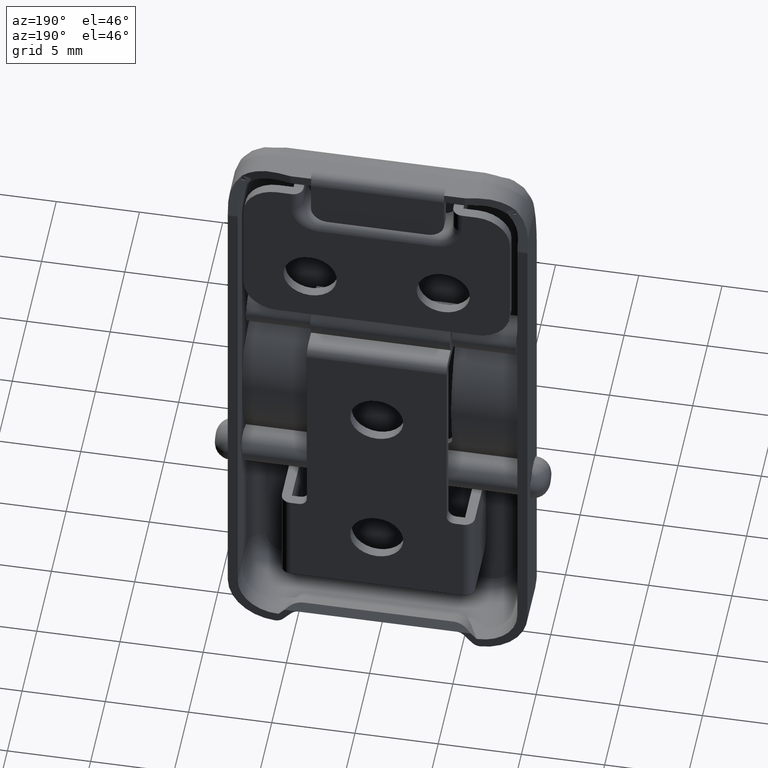
[diagram: clean part render]
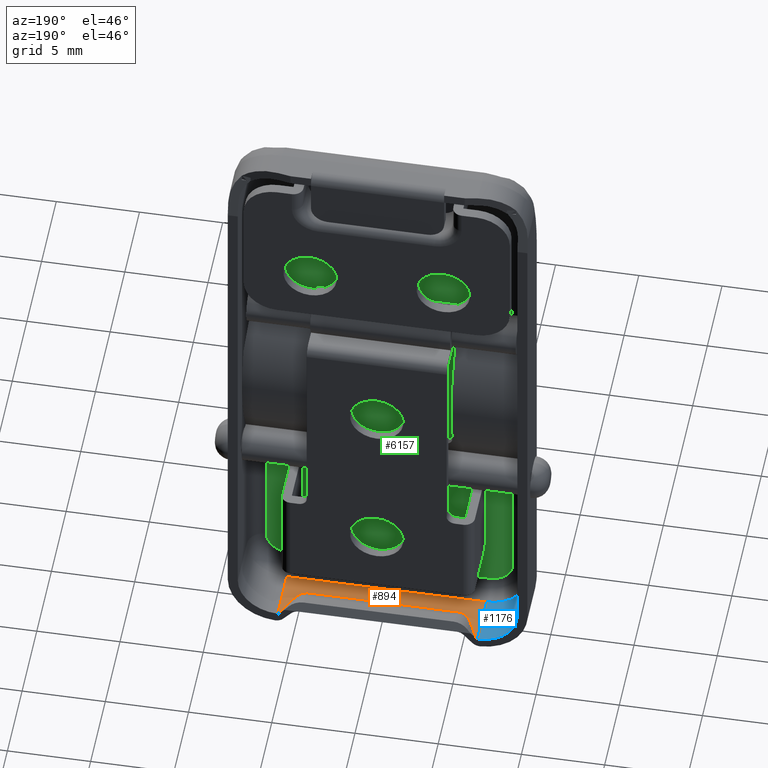
[diagram: same view with three faces highlighted in distinct colors, each labeled with its STEP entity id]
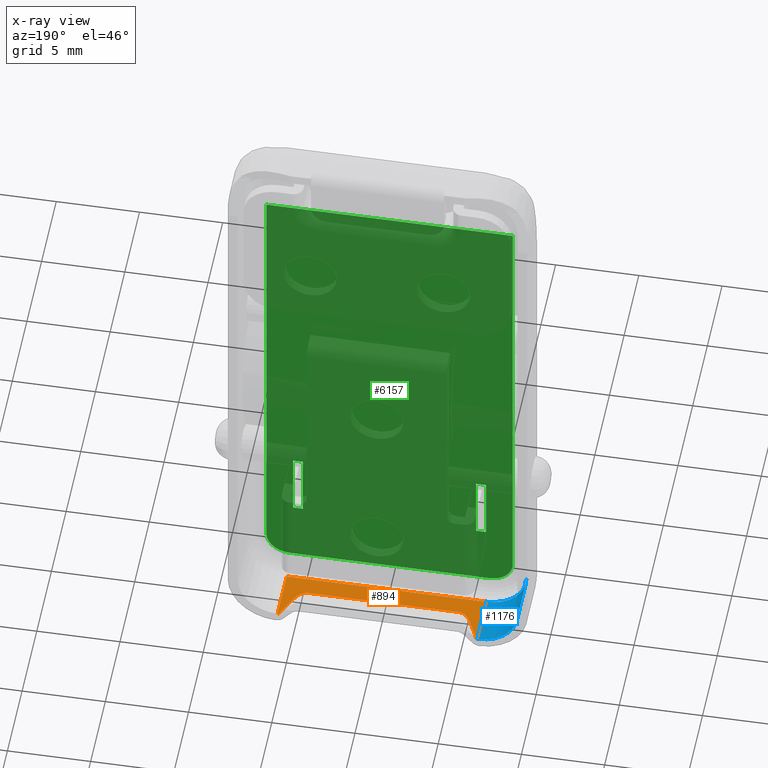
[diagram: x-ray of the same camera — body ghosted, the three highlighted faces saturated]
A machine part, auxiliary view with three faces highlighted in distinct colors.
The next image is the same camera in x-ray (body ghosted, the three faces saturated) — at least one of them is partly hidden behind the body in this view.
Their STEP definitions:

[orange] entity #894 — the highlighted planar face has unit normal (0, 0, -1).
#42 = CARTESIAN_POINT ( 'NONE',  ( 5.951801146340889300, 2.300006252357360100, -23.89304136415245200 ) ) ;
#137 = ORIENTED_EDGE ( 'NONE', *, *, #3280, .F. ) ;
#142 = DIRECTION ( 'NONE',  ( -0.4297196814839521200, -0.9029623443673222600, -0.0000000000000000000 ) ) ;
#348 = EDGE_CURVE ( 'NONE', #4012, #5496, #2233, .T. ) ;
#431 = EDGE_CURVE ( 'NONE', #918, #1762, #3290, .T. ) ;
#587 = VERTEX_POINT ( 'NONE', #3178 ) ;
#772 = DIRECTION ( 'NONE',  ( 0.0000000000000000000, 1.000000000000000000, 0.0000000000000000000 ) ) ;
#809 = VECTOR ( 'NONE', #4792, 1000.000000000000000 ) ;
#827 = CARTESIAN_POINT ( 'NONE',  ( 5.351473226424399600, 1.038547842807658000, -23.89304136415245200 ) ) ;
#852 = CARTESIAN_POINT ( 'NONE',  ( -5.665243343082629200, 1.697875828439879800, -23.89304136415245200 ) ) ;
#894 = ADVANCED_FACE ( 'NONE', ( #2236 ), #5094, .F. ) ;
#918 = VERTEX_POINT ( 'NONE', #1664 ) ;
#1089 = AXIS2_PLACEMENT_3D ( 'NONE', #5581, #6090, #3116 ) ;
#1098 = VERTEX_POINT ( 'NONE', #3125 ) ;
#1100 = DIRECTION ( 'NONE',  ( 1.000000000000000000, -0.0000000000000000000, -0.0000000000000000000 ) ) ;
#1256 = CARTESIAN_POINT ( 'NONE',  ( -6.000001000000089800, 9.252350464339370100E-006, -23.89304136415245200 ) ) ;
#1280 =( BOUNDED_CURVE ( )  B_SPLINE_CURVE ( 3, ( #5215, #4248, #1791, #5732 ),
 .UNSPECIFIED., .F., .F. ) 
 B_SPLINE_CURVE_WITH_KNOTS ( ( 4, 4 ),
 ( 5.497787143782145100, 6.283185307179586200 ),
 .UNSPECIFIED. ) 
 CURVE ( )  GEOMETRIC_REPRESENTATION_ITEM ( )  RATIONAL_B_SPLINE_CURVE ( ( 1.000000000000000000, 0.9492530216741921200, 0.9492530216741921200, 1.000000000000000000 ) ) 
 REPRESENTATION_ITEM ( '' )  );
#1424 = VECTOR ( 'NONE', #772, 1000.000000000000000 ) ;
#1586 = CARTESIAN_POINT ( 'NONE',  ( 990.9999990000000000, 2.300006252357360100, -23.89304136415245200 ) ) ;
#1592 = EDGE_LOOP ( 'NONE', ( #2721, #2456, #3804, #137, #1938, #5037, #2916, #6332, #4716, #5755 ) ) ;
#1647 = VERTEX_POINT ( 'NONE', #42 ) ;
#1664 = CARTESIAN_POINT ( 'NONE',  ( 6.000000999999909500, 2.300006252357360100, -23.89304136415245200 ) ) ;
#1680 = VECTOR ( 'NONE', #2274, 1000.000000000000000 ) ;
#1744 = LINE ( 'NONE', #1586, #5198 ) ;
#1762 = VERTEX_POINT ( 'NONE', #6352 ) ;
#1791 = CARTESIAN_POINT ( 'NONE',  ( 4.825458411478205500, 0.3000062523574099100, -23.89304136415245600 ) ) ;
#1910 = VERTEX_POINT ( 'NONE', #4603 ) ;
#1937 = CARTESIAN_POINT ( 'NONE',  ( 1.999999906840410200E-006, 0.3000062523573610000, -23.89304136415245200 ) ) ;
#1938 = ORIENTED_EDGE ( 'NONE', *, *, #6288, .F. ) ;
#2081 = DIRECTION ( 'NONE',  ( 1.000000000000000000, -0.0000000000000000000, -0.0000000000000000000 ) ) ;
#2086 = CARTESIAN_POINT ( 'NONE',  ( -4.825454411478283100, 0.3000062523574150200, -23.89304136415245200 ) ) ;
#2233 =( BOUNDED_CURVE ( )  B_SPLINE_CURVE ( 3, ( #2572, #2086, #6034, #3078 ),
 .UNSPECIFIED., .F., .F. ) 
 B_SPLINE_CURVE_WITH_KNOTS ( ( 4, 4 ),
 ( 3.141592653589793100, 3.926990816987230300 ),
 .UNSPECIFIED. ) 
 CURVE ( )  GEOMETRIC_REPRESENTATION_ITEM ( )  RATIONAL_B_SPLINE_CURVE ( ( 1.000000000000000000, 0.9492530216741924500, 0.9492530216741924500, 1.000000000000000000 ) ) 
 REPRESENTATION_ITEM ( '' )  );
#2236 = FACE_OUTER_BOUND ( 'NONE', #1592, .T. ) ;
#2269 = LINE ( 'NONE', #852, #809 ) ;
#2274 = DIRECTION ( 'NONE',  ( -1.000000000000000000, 0.0000000000000000000, 0.0000000000000000000 ) ) ;
#2449 = VECTOR ( 'NONE', #2549, 1000.000000000000000 ) ;
#2456 = ORIENTED_EDGE ( 'NONE', *, *, #348, .T. ) ;
#2547 = EDGE_CURVE ( 'NONE', #2604, #5019, #1280, .T. ) ;
#2549 = DIRECTION ( 'NONE',  ( -0.0000000000000000000, -1.000000000000000000, -0.0000000000000000000 ) ) ;
#2572 = CARTESIAN_POINT ( 'NONE',  ( -4.502941089000659100, 0.3000062523573610000, -23.89304136415245200 ) ) ;
#2578 = CARTESIAN_POINT ( 'NONE',  ( 9.463611489973390100, 9.679311035208559800, -23.89304136415245200 ) ) ;
#2604 = VERTEX_POINT ( 'NONE', #827 ) ;
#2721 = ORIENTED_EDGE ( 'NONE', *, *, #3885, .F. ) ;
#2731 = LINE ( 'NONE', #1256, #1424 ) ;
#2755 = LINE ( 'NONE', #3563, #3907 ) ;
#2782 = CARTESIAN_POINT ( 'NONE',  ( -5.351469226424530500, 1.038547842807543900, -23.89304136415245200 ) ) ;
#2916 = ORIENTED_EDGE ( 'NONE', *, *, #431, .F. ) ;
#3078 = CARTESIAN_POINT ( 'NONE',  ( -5.351469226424530500, 1.038547842807543900, -23.89304136415245200 ) ) ;
#3116 = DIRECTION ( 'NONE',  ( -1.000000000000000000, 0.0000000000000000000, 0.0000000000000000000 ) ) ;
#3125 = CARTESIAN_POINT ( 'NONE',  ( -6.000001000000089800, -0.7999907476493990400, -23.89304136415245200 ) ) ;
#3178 = CARTESIAN_POINT ( 'NONE',  ( -6.000001000000089800, 2.300006252357360100, -23.89304136415245200 ) ) ;
#3280 = EDGE_CURVE ( 'NONE', #587, #1910, #2755, .T. ) ;
#3290 = LINE ( 'NONE', #3536, #2449 ) ;
#3487 = EDGE_CURVE ( 'NONE', #1762, #1098, #4306, .T. ) ;
#3528 = CARTESIAN_POINT ( 'NONE',  ( 4.502945089000579800, 0.3000062523573610000, -23.89304136415245200 ) ) ;
#3536 = CARTESIAN_POINT ( 'NONE',  ( 6.000000999999909500, 9.252350464339370100E-006, -23.89304136415245200 ) ) ;
#3563 = CARTESIAN_POINT ( 'NONE',  ( 990.9999990000000000, 2.300006252357360100, -23.89304136415245200 ) ) ;
#3804 = ORIENTED_EDGE ( 'NONE', *, *, #6382, .T. ) ;
#3885 = EDGE_CURVE ( 'NONE', #4012, #5019, #4772, .T. ) ;
#3907 = VECTOR ( 'NONE', #1100, 1000.000000000000000 ) ;
#4012 = VERTEX_POINT ( 'NONE', #5661 ) ;
#4248 = CARTESIAN_POINT ( 'NONE',  ( 5.123421869077496600, 0.5593475707720461100, -23.89304136415245600 ) ) ;
#4306 = LINE ( 'NONE', #5739, #1680 ) ;
#4429 = DIRECTION ( 'NONE',  ( 1.000000000000000000, -0.0000000000000000000, -0.0000000000000000000 ) ) ;
#4466 = VECTOR ( 'NONE', #4429, 1000.000000000000000 ) ;
#4603 = CARTESIAN_POINT ( 'NONE',  ( -5.951797146341069900, 2.300006252357360100, -23.89304136415245200 ) ) ;
#4716 = ORIENTED_EDGE ( 'NONE', *, *, #6113, .T. ) ;
#4772 = LINE ( 'NONE', #1937, #4466 ) ;
#4792 = DIRECTION ( 'NONE',  ( -0.4297196814839514000, 0.9029623443673227000, -0.0000000000000000000 ) ) ;
#4965 = LINE ( 'NONE', #2578, #6134 ) ;
#5019 = VERTEX_POINT ( 'NONE', #3528 ) ;
#5037 = ORIENTED_EDGE ( 'NONE', *, *, #3487, .F. ) ;
#5094 = PLANE ( 'NONE',  #1089 ) ;
#5198 = VECTOR ( 'NONE', #2081, 1000.000000000000000 ) ;
#5215 = CARTESIAN_POINT ( 'NONE',  ( 5.351473226424399600, 1.038547842807658000, -23.89304136415245200 ) ) ;
#5496 = VERTEX_POINT ( 'NONE', #2782 ) ;
#5581 = CARTESIAN_POINT ( 'NONE',  ( 1.999999906840410200E-006, 9.252350464339370100E-006, -23.89304136415245200 ) ) ;
#5661 = CARTESIAN_POINT ( 'NONE',  ( -4.502941089000659100, 0.3000062523573610000, -23.89304136415245200 ) ) ;
#5732 = CARTESIAN_POINT ( 'NONE',  ( 4.502945089000579800, 0.3000062523573610000, -23.89304136415245200 ) ) ;
#5739 = CARTESIAN_POINT ( 'NONE',  ( 1.999999906840410200E-006, -0.7999907476493990400, -23.89304136415245200 ) ) ;
#5755 = ORIENTED_EDGE ( 'NONE', *, *, #2547, .T. ) ;
#5788 = EDGE_CURVE ( 'NONE', #1647, #918, #1744, .T. ) ;
#6034 = CARTESIAN_POINT ( 'NONE',  ( -5.123417869077572500, 0.5593475707720481100, -23.89304136415245200 ) ) ;
#6090 = DIRECTION ( 'NONE',  ( 0.0000000000000000000, 0.0000000000000000000, -1.000000000000000000 ) ) ;
#6113 = EDGE_CURVE ( 'NONE', #1647, #2604, #4965, .T. ) ;
#6134 = VECTOR ( 'NONE', #142, 1000.000000000000100 ) ;
#6288 = EDGE_CURVE ( 'NONE', #1098, #587, #2731, .T. ) ;
#6332 = ORIENTED_EDGE ( 'NONE', *, *, #5788, .F. ) ;
#6352 = CARTESIAN_POINT ( 'NONE',  ( 6.000000999999909500, -0.7999907476493990400, -23.89304136415245200 ) ) ;
#6382 = EDGE_CURVE ( 'NONE', #5496, #1910, #2269, .T. ) ;

[blue] entity #1176 — the highlighted cylindrical surface (partial cylindrical patch) has radius 2.4 mm, axis along (0, 1, 0).
#158 = FACE_OUTER_BOUND ( 'NONE', #2150, .T. ) ;
#189 = VERTEX_POINT ( 'NONE', #3995 ) ;
#313 = AXIS2_PLACEMENT_3D ( 'NONE', #3151, #6130, #3678 ) ;
#587 = VERTEX_POINT ( 'NONE', #3178 ) ;
#772 = DIRECTION ( 'NONE',  ( 0.0000000000000000000, 1.000000000000000000, 0.0000000000000000000 ) ) ;
#1098 = VERTEX_POINT ( 'NONE', #3125 ) ;
#1176 = ADVANCED_FACE ( 'NONE', ( #158 ), #4780, .F. ) ;
#1256 = CARTESIAN_POINT ( 'NONE',  ( -6.000001000000089800, 9.252350464339370100E-006, -23.89304136415245200 ) ) ;
#1412 = VERTEX_POINT ( 'NONE', #1974 ) ;
#1413 = EDGE_CURVE ( 'NONE', #1412, #189, #2537, .T. ) ;
#1424 = VECTOR ( 'NONE', #772, 1000.000000000000000 ) ;
#1486 = CARTESIAN_POINT ( 'NONE',  ( -8.400001000000090200, 9.252350464339370100E-006, -21.49304136415245400 ) ) ;
#1804 = CARTESIAN_POINT ( 'NONE',  ( -6.000001000000089800, 2.300006252357360100, -21.49304136415245400 ) ) ;
#1974 = CARTESIAN_POINT ( 'NONE',  ( -8.400001000000090200, 2.300006252357360100, -21.49304136415245400 ) ) ;
#2150 = EDGE_LOOP ( 'NONE', ( #4548, #3837, #6343, #3589 ) ) ;
#2281 = DIRECTION ( 'NONE',  ( 0.0000000000000000000, 0.0000000000000000000, 1.000000000000000000 ) ) ;
#2537 = LINE ( 'NONE', #1486, #6328 ) ;
#2607 = EDGE_CURVE ( 'NONE', #1098, #189, #4998, .T. ) ;
#2731 = LINE ( 'NONE', #1256, #1424 ) ;
#2807 = DIRECTION ( 'NONE',  ( 0.0000000000000000000, 1.000000000000000000, 0.0000000000000000000 ) ) ;
#2985 = EDGE_CURVE ( 'NONE', #587, #1412, #4771, .T. ) ;
#3125 = CARTESIAN_POINT ( 'NONE',  ( -6.000001000000089800, -0.7999907476493990400, -23.89304136415245200 ) ) ;
#3151 = CARTESIAN_POINT ( 'NONE',  ( -6.000001000000089800, 9.252350464339370100E-006, -21.49304136415245400 ) ) ;
#3178 = CARTESIAN_POINT ( 'NONE',  ( -6.000001000000089800, 2.300006252357360100, -23.89304136415245200 ) ) ;
#3510 = AXIS2_PLACEMENT_3D ( 'NONE', #5771, #2807, #6268 ) ;
#3589 = ORIENTED_EDGE ( 'NONE', *, *, #2607, .F. ) ;
#3678 = DIRECTION ( 'NONE',  ( 0.0000000000000000000, 0.0000000000000000000, 1.000000000000000000 ) ) ;
#3837 = ORIENTED_EDGE ( 'NONE', *, *, #2985, .T. ) ;
#3959 = DIRECTION ( 'NONE',  ( -0.0000000000000000000, -1.000000000000000000, -0.0000000000000000000 ) ) ;
#3995 = CARTESIAN_POINT ( 'NONE',  ( -8.400001000000090200, -0.7999907476493990400, -21.49304136415245400 ) ) ;
#4548 = ORIENTED_EDGE ( 'NONE', *, *, #6288, .T. ) ;
#4586 = AXIS2_PLACEMENT_3D ( 'NONE', #1804, #5232, #2281 ) ;
#4771 = CIRCLE ( 'NONE', #4586, 2.399999999999999500 ) ;
#4780 = CYLINDRICAL_SURFACE ( 'NONE', #313, 2.399999999999999500 ) ;
#4998 = CIRCLE ( 'NONE', #3510, 2.399999999999999500 ) ;
#5232 = DIRECTION ( 'NONE',  ( 0.0000000000000000000, 1.000000000000000000, 0.0000000000000000000 ) ) ;
#5771 = CARTESIAN_POINT ( 'NONE',  ( -6.000001000000089800, -0.7999907476493990400, -21.49304136415245400 ) ) ;
#6130 = DIRECTION ( 'NONE',  ( 0.0000000000000000000, 1.000000000000000000, 0.0000000000000000000 ) ) ;
#6268 = DIRECTION ( 'NONE',  ( 0.0000000000000000000, 0.0000000000000000000, 1.000000000000000000 ) ) ;
#6288 = EDGE_CURVE ( 'NONE', #1098, #587, #2731, .T. ) ;
#6328 = VECTOR ( 'NONE', #3959, 1000.000000000000000 ) ;
#6343 = ORIENTED_EDGE ( 'NONE', *, *, #1413, .T. ) ;

[green] entity #6157 — the highlighted planar face has unit normal (0, -1, 0).
#6 = ORIENTED_EDGE ( 'NONE', *, *, #3974, .T. ) ;
#166 = CARTESIAN_POINT ( 'NONE',  ( 990.9999990000000000, -1.799990747649400100, -22.49304136415245000 ) ) ;
#220 = LINE ( 'NONE', #2330, #2684 ) ;
#264 = EDGE_CURVE ( 'NONE', #5331, #1589, #4526, .T. ) ;
#270 = CARTESIAN_POINT ( 'NONE',  ( 5.800002999999489500, -1.800000000000000000, -19.00000000000000000 ) ) ;
#274 = CARTESIAN_POINT ( 'NONE',  ( -5.200002999999870000, -1.800000000000000000, 0.0000000000000000000 ) ) ;
#344 = DIRECTION ( 'NONE',  ( 0.0000000000000000000, 0.0000000000000000000, -1.000000000000000000 ) ) ;
#363 = ORIENTED_EDGE ( 'NONE', *, *, #5858, .F. ) ;
#462 = DIRECTION ( 'NONE',  ( 0.0000000000000000000, 0.0000000000000000000, 1.000000000000000000 ) ) ;
#476 = CARTESIAN_POINT ( 'NONE',  ( 7.400000999999900100, -1.799990747649400100, -21.49304136415245400 ) ) ;
#657 = DIRECTION ( 'NONE',  ( -1.000000000000000000, -0.0000000000000000000, -0.0000000000000000000 ) ) ;
#689 = ORIENTED_EDGE ( 'NONE', *, *, #3067, .T. ) ;
#978 = EDGE_CURVE ( 'NONE', #3579, #3787, #4705, .T. ) ;
#1166 = CARTESIAN_POINT ( 'NONE',  ( 990.9999990000000000, -1.799990747649400100, 6.506958635846870300 ) ) ;
#1301 = CARTESIAN_POINT ( 'NONE',  ( 7.400000999999900100, -1.799990747649400100, 6.506958635846870300 ) ) ;
#1329 = CARTESIAN_POINT ( 'NONE',  ( 5.800002999999489500, -1.800000000000000000, -19.00000000000000000 ) ) ;
#1344 = CARTESIAN_POINT ( 'NONE',  ( -5.800002999999500200, -1.799995373824705200, -14.99999999999690000 ) ) ;
#1529 = LINE ( 'NONE', #6146, #5298 ) ;
#1545 = CARTESIAN_POINT ( 'NONE',  ( 6.000000999999909500, -1.799990747649400100, -21.49304136415245400 ) ) ;
#1558 = EDGE_LOOP ( 'NONE', ( #5398, #6267, #2032, #2421, #363, #2505 ) ) ;
#1589 = VERTEX_POINT ( 'NONE', #2950 ) ;
#1605 = CARTESIAN_POINT ( 'NONE',  ( -6.000001000000119200, -1.799990747649400100, -22.89304136415245200 ) ) ;
#1615 = VERTEX_POINT ( 'NONE', #4444 ) ;
#1648 = AXIS2_PLACEMENT_3D ( 'NONE', #6258, #3293, #344 ) ;
#1650 = DIRECTION ( 'NONE',  ( 0.0000000000000000000, -1.000000000000000000, 0.0000000000000000000 ) ) ;
#1682 = ORIENTED_EDGE ( 'NONE', *, *, #3069, .F. ) ;
#1723 = VERTEX_POINT ( 'NONE', #2356 ) ;
#1793 = EDGE_LOOP ( 'NONE', ( #1682, #2127, #2804, #689 ) ) ;
#1828 = CIRCLE ( 'NONE', #1648, 1.399999999999998600 ) ;
#1856 = CARTESIAN_POINT ( 'NONE',  ( 5.200002999999900200, -1.800000000000000000, -14.99999999999668200 ) ) ;
#2024 = DIRECTION ( 'NONE',  ( 0.0000000000000000000, 0.0000000000000000000, -1.000000000000000000 ) ) ;
#2032 = ORIENTED_EDGE ( 'NONE', *, *, #3489, .F. ) ;
#2055 = LINE ( 'NONE', #6359, #4690 ) ;
#2127 = ORIENTED_EDGE ( 'NONE', *, *, #264, .T. ) ;
#2190 = FACE_OUTER_BOUND ( 'NONE', #1558, .T. ) ;
#2242 = AXIS2_PLACEMENT_3D ( 'NONE', #166, #1650, #5097 ) ;
#2278 = EDGE_CURVE ( 'NONE', #1723, #3579, #2771, .T. ) ;
#2294 = EDGE_CURVE ( 'NONE', #4794, #1723, #5391, .T. ) ;
#2330 = CARTESIAN_POINT ( 'NONE',  ( -5.800002999998939800, -1.799990747649400100, -22.49304136421859800 ) ) ;
#2356 = CARTESIAN_POINT ( 'NONE',  ( 6.000000999999999300, -1.799990747649400100, -22.89304136415245200 ) ) ;
#2421 = ORIENTED_EDGE ( 'NONE', *, *, #4330, .F. ) ;
#2422 = B_SPLINE_CURVE_WITH_KNOTS ( 'NONE', 3,
 ( #3218, #6186, #2718, #270 ),
 .UNSPECIFIED., .F., .F.,
 ( 4, 4 ),
 ( 0.0000000000000000000, 1.000000000000000000 ),
 .UNSPECIFIED. ) ;
#2485 = EDGE_CURVE ( 'NONE', #3113, #6363, #2422, .T. ) ;
#2505 = ORIENTED_EDGE ( 'NONE', *, *, #978, .F. ) ;
#2601 = VECTOR ( 'NONE', #3225, 1000.000000000000000 ) ;
#2608 = VECTOR ( 'NONE', #4514, 1000.000000000000000 ) ;
#2646 = AXIS2_PLACEMENT_3D ( 'NONE', #1545, #4981, #2024 ) ;
#2684 = VECTOR ( 'NONE', #2821, 1000.000000000000000 ) ;
#2718 = CARTESIAN_POINT ( 'NONE',  ( 5.600003000000038300, -1.799990747649400100, -18.99999999999999600 ) ) ;
#2771 = CIRCLE ( 'NONE', #2646, 1.399999999999998600 ) ;
#2801 = CARTESIAN_POINT ( 'NONE',  ( -7.400001000000079500, -1.799990747649400100, -21.49304136415245400 ) ) ;
#2804 = ORIENTED_EDGE ( 'NONE', *, *, #2874, .T. ) ;
#2821 = DIRECTION ( 'NONE',  ( -6.635317295607859100E-014, 0.0000000000000000000, 1.000000000000000000 ) ) ;
#2848 = CARTESIAN_POINT ( 'NONE',  ( -5.200002999999870000, -1.800000000000000000, -19.00000000000000000 ) ) ;
#2874 = EDGE_CURVE ( 'NONE', #1589, #3734, #3771, .T. ) ;
#2950 = CARTESIAN_POINT ( 'NONE',  ( -5.200002999999870000, -1.800000000000000000, -19.00000000000000000 ) ) ;
#3018 = ORIENTED_EDGE ( 'NONE', *, *, #2485, .T. ) ;
#3036 = VERTEX_POINT ( 'NONE', #2801 ) ;
#3037 = DIRECTION ( 'NONE',  ( 0.0000000000000000000, 0.0000000000000000000, -1.000000000000000000 ) ) ;
#3067 = EDGE_CURVE ( 'NONE', #3734, #5302, #4155, .T. ) ;
#3069 = EDGE_CURVE ( 'NONE', #5331, #5302, #220, .T. ) ;
#3099 = EDGE_CURVE ( 'NONE', #1615, #6256, #4993, .T. ) ;
#3113 = VERTEX_POINT ( 'NONE', #3355 ) ;
#3185 = EDGE_CURVE ( 'NONE', #3113, #6256, #2055, .T. ) ;
#3218 = CARTESIAN_POINT ( 'NONE',  ( 5.200002999999870000, -1.800000000000000000, -19.00000000000000000 ) ) ;
#3225 = DIRECTION ( 'NONE',  ( 0.0000000000000000000, 0.0000000000000000000, 1.000000000000000000 ) ) ;
#3293 = DIRECTION ( 'NONE',  ( 0.0000000000000000000, -1.000000000000000000, 0.0000000000000000000 ) ) ;
#3297 = LINE ( 'NONE', #5505, #4458 ) ;
#3355 = CARTESIAN_POINT ( 'NONE',  ( 5.200002999999870000, -1.800000000000000000, -19.00000000000000000 ) ) ;
#3489 = EDGE_CURVE ( 'NONE', #3036, #4794, #1828, .T. ) ;
#3579 = VERTEX_POINT ( 'NONE', #476 ) ;
#3591 = VECTOR ( 'NONE', #657, 1000.000000000000000 ) ;
#3691 = VECTOR ( 'NONE', #6300, 1000.000000000000000 ) ;
#3734 = VERTEX_POINT ( 'NONE', #5007 ) ;
#3771 = LINE ( 'NONE', #274, #2601 ) ;
#3787 = VERTEX_POINT ( 'NONE', #1301 ) ;
#3799 = CARTESIAN_POINT ( 'NONE',  ( -5.400002999999653500, -1.799990747649400100, -18.99999999999999600 ) ) ;
#3891 = VERTEX_POINT ( 'NONE', #6387 ) ;
#3974 = EDGE_CURVE ( 'NONE', #6363, #1615, #1529, .T. ) ;
#4155 = LINE ( 'NONE', #4790, #5297 ) ;
#4188 = DIRECTION ( 'NONE',  ( -0.0000000000000000000, -0.0000000000000000000, 1.000000000000000000 ) ) ;
#4330 = EDGE_CURVE ( 'NONE', #3891, #3036, #3297, .T. ) ;
#4402 = VECTOR ( 'NONE', #6154, 1000.000000000000000 ) ;
#4444 = CARTESIAN_POINT ( 'NONE',  ( 5.800002999999489500, -1.800000000000000000, -14.99999999999668200 ) ) ;
#4458 = VECTOR ( 'NONE', #3037, 1000.000000000000000 ) ;
#4514 = DIRECTION ( 'NONE',  ( 1.000000000000000000, 0.0000000000000000000, 0.0000000000000000000 ) ) ;
#4526 = B_SPLINE_CURVE_WITH_KNOTS ( 'NONE', 3,
 ( #5871, #6262, #3799, #2848 ),
 .UNSPECIFIED., .F., .F.,
 ( 4, 4 ),
 ( 0.0000000000000000000, 1.000000000000000000 ),
 .UNSPECIFIED. ) ;
#4662 = CARTESIAN_POINT ( 'NONE',  ( 7.400000999999900100, -1.799990747649400100, -22.49304136415245000 ) ) ;
#4671 = FACE_BOUND ( 'NONE', #1793, .T. ) ;
#4690 = VECTOR ( 'NONE', #462, 1000.000000000000000 ) ;
#4705 = LINE ( 'NONE', #4662, #4402 ) ;
#4790 = CARTESIAN_POINT ( 'NONE',  ( -5.800002999999390100, -1.800000000000000000, -14.99999999999690000 ) ) ;
#4794 = VERTEX_POINT ( 'NONE', #1605 ) ;
#4981 = DIRECTION ( 'NONE',  ( 0.0000000000000000000, -1.000000000000000000, 0.0000000000000000000 ) ) ;
#4993 = LINE ( 'NONE', #1856, #3691 ) ;
#5007 = CARTESIAN_POINT ( 'NONE',  ( -5.200002999999870000, -1.800000000000000000, -14.99999999999684000 ) ) ;
#5097 = DIRECTION ( 'NONE',  ( 0.0000000000000000000, 0.0000000000000000000, -1.000000000000000000 ) ) ;
#5195 = EDGE_LOOP ( 'NONE', ( #3018, #6, #6077, #5379 ) ) ;
#5267 = DIRECTION ( 'NONE',  ( -1.000000000000000000, 0.0000000000000000000, -1.029992063861470000E-013 ) ) ;
#5297 = VECTOR ( 'NONE', #5267, 1000.000000000000000 ) ;
#5298 = VECTOR ( 'NONE', #4188, 1000.000000000000000 ) ;
#5302 = VERTEX_POINT ( 'NONE', #1344 ) ;
#5331 = VERTEX_POINT ( 'NONE', #6306 ) ;
#5379 = ORIENTED_EDGE ( 'NONE', *, *, #3185, .F. ) ;
#5391 = LINE ( 'NONE', #5978, #2608 ) ;
#5398 = ORIENTED_EDGE ( 'NONE', *, *, #2278, .F. ) ;
#5505 = CARTESIAN_POINT ( 'NONE',  ( -7.400001000000079500, -1.799990747649400100, -22.49304136415245000 ) ) ;
#5565 = PLANE ( 'NONE',  #2242 ) ;
#5648 = CARTESIAN_POINT ( 'NONE',  ( 5.200002999999870000, -1.799995373824710100, -14.99999999999668200 ) ) ;
#5858 = EDGE_CURVE ( 'NONE', #3787, #3891, #6058, .T. ) ;
#5871 = CARTESIAN_POINT ( 'NONE',  ( -5.800002999999489500, -1.800000000000000000, -19.00000000000000000 ) ) ;
#5976 = FACE_BOUND ( 'NONE', #5195, .T. ) ;
#5978 = CARTESIAN_POINT ( 'NONE',  ( 990.9999990000000000, -1.799990747649400100, -22.89304136415245200 ) ) ;
#6058 = LINE ( 'NONE', #1166, #3591 ) ;
#6077 = ORIENTED_EDGE ( 'NONE', *, *, #3099, .T. ) ;
#6146 = CARTESIAN_POINT ( 'NONE',  ( 5.799999000006829800, -1.799990747649400100, -22.49304136415245000 ) ) ;
#6154 = DIRECTION ( 'NONE',  ( -0.0000000000000000000, -0.0000000000000000000, 1.000000000000000000 ) ) ;
#6157 = ADVANCED_FACE ( 'NONE', ( #4671, #2190, #5976 ), #5565, .F. ) ;
#6186 = CARTESIAN_POINT ( 'NONE',  ( 5.400003000000023900, -1.799990747649400100, -18.99999999999999600 ) ) ;
#6256 = VERTEX_POINT ( 'NONE', #5648 ) ;
#6258 = CARTESIAN_POINT ( 'NONE',  ( -6.000001000000089800, -1.799990747649400100, -21.49304136415245400 ) ) ;
#6262 = CARTESIAN_POINT ( 'NONE',  ( -5.600002999999298400, -1.799990747649400100, -18.99999999999999600 ) ) ;
#6267 = ORIENTED_EDGE ( 'NONE', *, *, #2294, .F. ) ;
#6300 = DIRECTION ( 'NONE',  ( -1.000000000000000000, -0.0000000000000000000, -0.0000000000000000000 ) ) ;
#6306 = CARTESIAN_POINT ( 'NONE',  ( -5.800002999999489500, -1.800000000000000000, -19.00000000000000000 ) ) ;
#6359 = CARTESIAN_POINT ( 'NONE',  ( 5.200002999999870000, -1.800000000000000000, 0.0000000000000000000 ) ) ;
#6363 = VERTEX_POINT ( 'NONE', #1329 ) ;
#6387 = CARTESIAN_POINT ( 'NONE',  ( -7.400001000000079500, -1.799990747649400100, 6.506958635846860500 ) ) ;